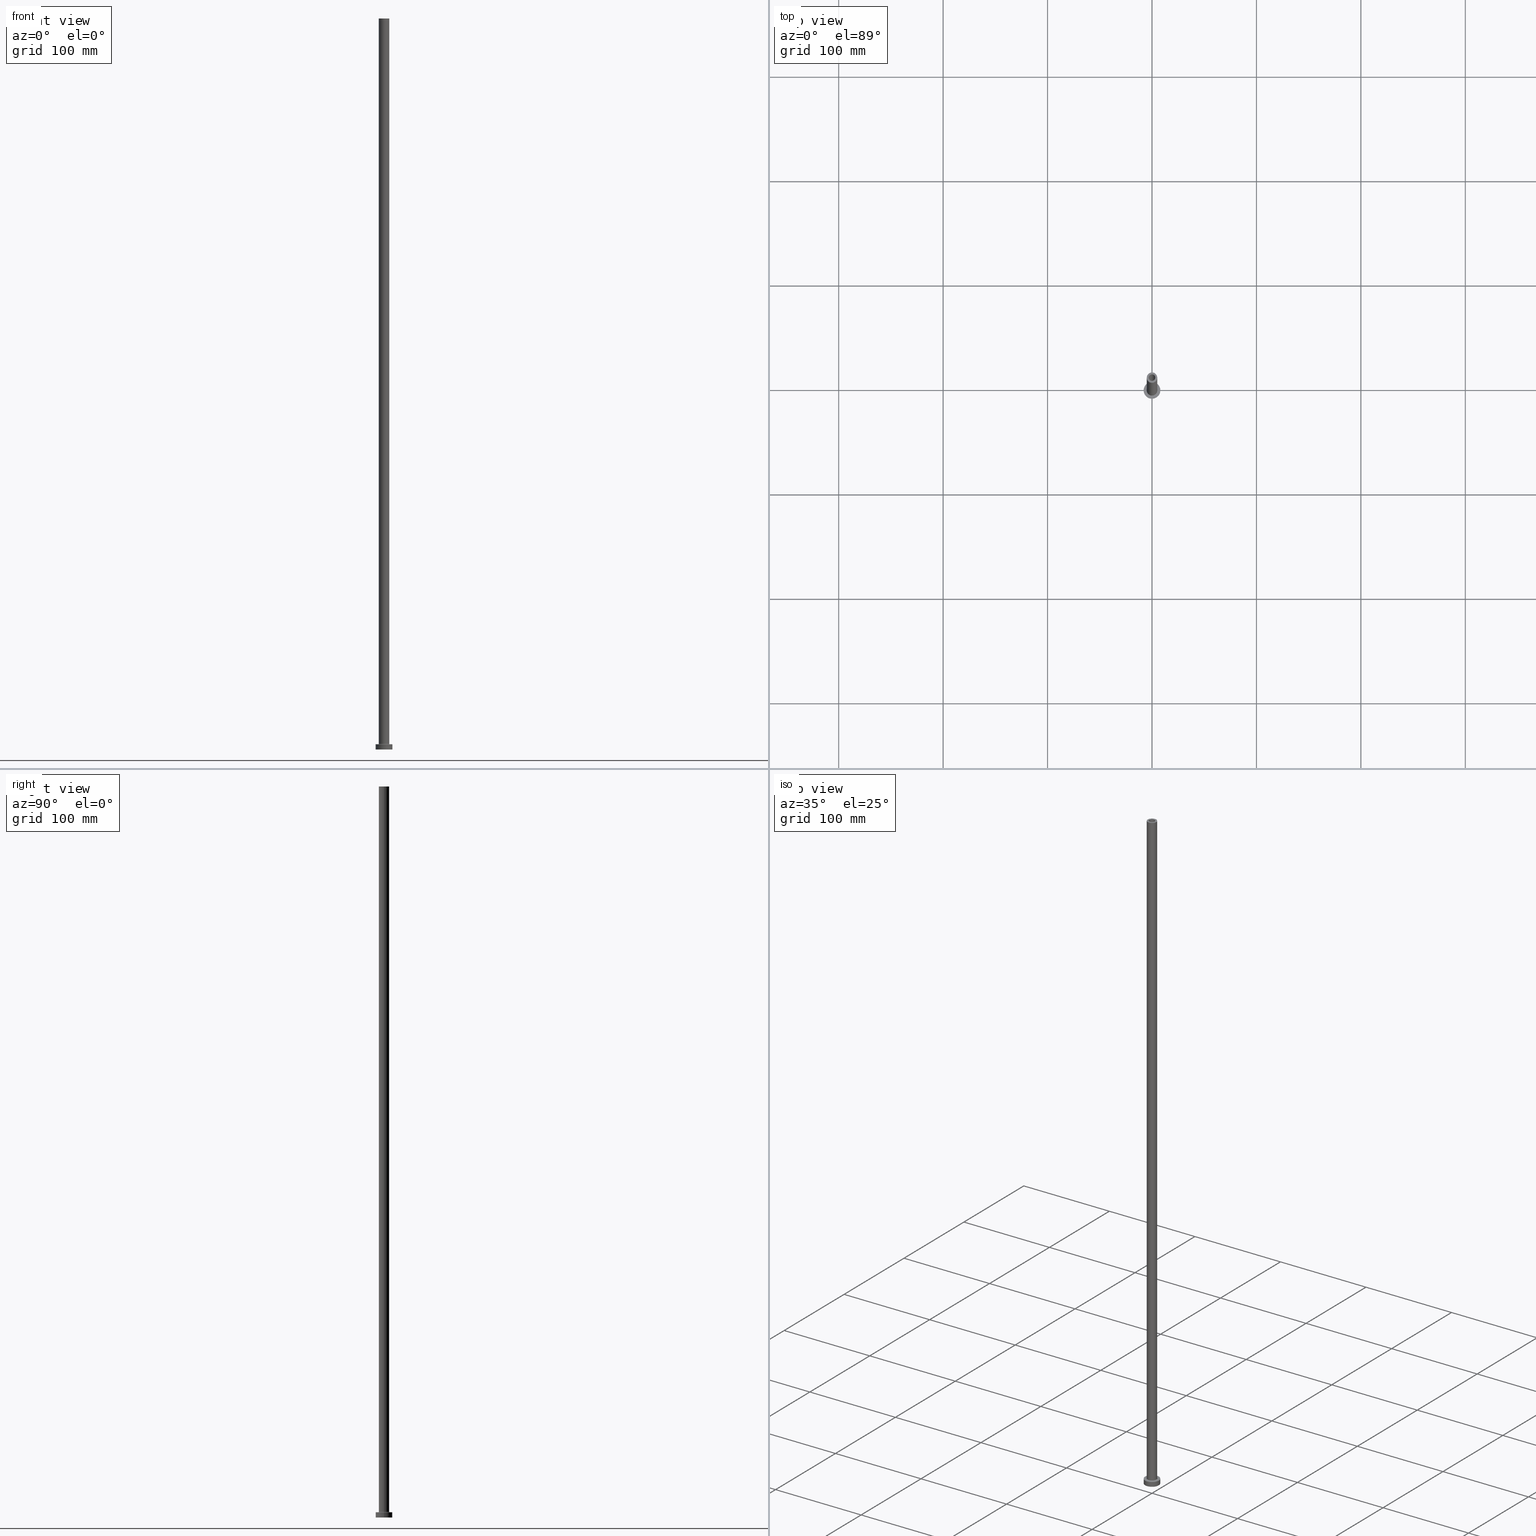
[diagram: canonical four-view strip — front | top / right | iso, engineering-drawing reading convention]
A machine part, canonical four-view strip (front | top / right | iso — engineering-drawing reading convention). The complete STEP part file that produces these views, byte-faithful:
ISO-10303-21;
HEADER;
FILE_DESCRIPTION (( 'STEP AP203' ),
    '1' );
FILE_NAME ('3b74.STEP',
    '2023-02-13T14:29:16',
    ( '' ),
    ( '' ),
    'SwSTEP 2.0',
    'SolidWorks 2019',
    '' );
FILE_SCHEMA (( 'CONFIG_CONTROL_DESIGN' ));
ENDSEC;

DATA;
#1 = CIRCLE ( 'NONE', #217, 5.000000000000000000 ) ;
#2 = AXIS2_PLACEMENT_3D ( 'NONE', #292, #110, #241 ) ;
#3 = PERSON_AND_ORGANIZATION ( #51, #314 ) ;
#4 = ORIENTED_EDGE ( 'NONE', *, *, #133, .F. ) ;
#5 = CARTESIAN_POINT ( 'NONE',  ( 0.000000000000000000, 0.000000000000000000, 700.0000000000000000 ) ) ;
#6 = DIRECTION ( 'NONE',  ( 1.000000000000000000, 0.000000000000000000, -0.000000000000000000 ) ) ;
#7 = CARTESIAN_POINT ( 'NONE',  ( 3.250000000000000444, 3.980102097228898231E-16, 654.9999999999998863 ) ) ;
#8 = DIRECTION ( 'NONE',  ( 1.000000000000000000, 0.000000000000000000, 0.000000000000000000 ) ) ;
#9 = ORIENTED_EDGE ( 'NONE', *, *, #353, .T. ) ;
#10 = EDGE_CURVE ( 'NONE', #148, #412, #381, .T. ) ;
#11 = ORIENTED_EDGE ( 'NONE', *, *, #402, .F. ) ;
#12 = CYLINDRICAL_SURFACE ( 'NONE', #70, 5.000000000000000000 ) ;
#13 = CIRCLE ( 'NONE', #398, 3.250000000000000444 ) ;
#14 = CIRCLE ( 'NONE', #289, 3.250000000000000444 ) ;
#15 = AXIS2_PLACEMENT_3D ( 'NONE', #437, #403, #61 ) ;
#16 = ORIENTED_EDGE ( 'NONE', *, *, #329, .T. ) ;
#17 = DATE_AND_TIME ( #449, #36 ) ;
#18 = APPROVAL_DATE_TIME ( #452, #160 ) ;
#19 = VERTEX_POINT ( 'NONE', #253 ) ;
#20 = DIRECTION ( 'NONE',  ( -0.000000000000000000, -0.000000000000000000, -1.000000000000000000 ) ) ;
#21 = DIRECTION ( 'NONE',  ( -1.000000000000000000, 1.224646799147351482E-16, 0.000000000000000000 ) ) ;
#22 = CC_DESIGN_APPROVAL ( #160, ( #411 ) ) ;
#23 = ORIENTED_EDGE ( 'NONE', *, *, #311, .F. ) ;
#24 = TOROIDAL_SURFACE ( 'NONE', #281, 5.500000000000000000, 0.5000000000000000000 ) ;
#25 = ADVANCED_FACE ( 'NONE', ( #97 ), #48, .F. ) ;
#26 = DIRECTION ( 'NONE',  ( -0.000000000000000000, -0.000000000000000000, -1.000000000000000000 ) ) ;
#27 = CC_DESIGN_PERSON_AND_ORGANIZATION_ASSIGNMENT ( #234, #303, ( #448 ) ) ;
#28 = APPROVAL_STATUS ( 'not_yet_approved' ) ;
#29 = AXIS2_PLACEMENT_3D ( 'NONE', #413, #20, #131 ) ;
#30 = EDGE_LOOP ( 'NONE', ( #173, #232, #312, #23 ) ) ;
#31 = AXIS2_PLACEMENT_3D ( 'NONE', #39, #149, #290 ) ;
#32 = DIRECTION ( 'NONE',  ( 0.000000000000000000, 0.000000000000000000, 1.000000000000000000 ) ) ;
#33 = EDGE_LOOP ( 'NONE', ( #130, #239, #92, #298 ) ) ;
#34 = DIRECTION ( 'NONE',  ( 1.000000000000000000, 0.000000000000000000, -0.000000000000000000 ) ) ;
#35 = COORDINATED_UNIVERSAL_TIME_OFFSET ( 1, 0, .AHEAD. ) ;
#36 = LOCAL_TIME ( 15, 29, 16.00000000000000000, #187 ) ;
#37 = DIRECTION ( 'NONE',  ( -0.000000000000000000, -0.000000000000000000, -1.000000000000000000 ) ) ;
#38 = DIRECTION ( 'NONE',  ( 0.000000000000000000, 0.000000000000000000, 1.000000000000000000 ) ) ;
#39 = CARTESIAN_POINT ( 'NONE',  ( 0.000000000000000000, 0.000000000000000000, 654.9999999999998863 ) ) ;
#40 = DIRECTION ( 'NONE',  ( 1.000000000000000000, 0.000000000000000000, -0.000000000000000000 ) ) ;
#41 = ORIENTED_EDGE ( 'NONE', *, *, #393, .T. ) ;
#42 = ORIENTED_EDGE ( 'NONE', *, *, #332, .T. ) ;
#43 = CIRCLE ( 'NONE', #368, 0.5000000000000004441 ) ;
#44 = AXIS2_PLACEMENT_3D ( 'NONE', #141, #306, #384 ) ;
#45 = DIRECTION ( 'NONE',  ( -1.000000000000000000, 0.000000000000000000, 0.000000000000000000 ) ) ;
#46 = VERTEX_POINT ( 'NONE', #352 ) ;
#47 = ADVANCED_FACE ( 'NONE', ( #318, #116 ), #325, .T. ) ;
#48 = CYLINDRICAL_SURFACE ( 'NONE', #142, 3.100000000000000089 ) ;
#49 = EDGE_LOOP ( 'NONE', ( #16, #103 ) ) ;
#50 = PRODUCT_RELATED_PRODUCT_CATEGORY ( 'detail', '', ( #448 ) ) ;
#51 = PERSON ( 'NEUR�EN�', 'NEUR�EN�', 'NEUR�EN�', ('NEUR�EN�'), ('NEUR�EN�'), ('NEUR�EN�') ) ;
#52 = CC_DESIGN_APPROVAL ( #244, ( #435 ) ) ;
#53 = EDGE_LOOP ( 'NONE', ( #255, #77, #41, #11 ) ) ;
#54 = AXIS2_PLACEMENT_3D ( 'NONE', #382, #26, #276 ) ;
#55 = EDGE_CURVE ( 'NONE', #219, #379, #231, .T. ) ;
#56 = CIRCLE ( 'NONE', #143, 3.100000000000000089 ) ;
#57 = DIRECTION ( 'NONE',  ( 0.000000000000000000, 0.000000000000000000, 1.000000000000000000 ) ) ;
#58 = DIRECTION ( 'NONE',  ( 1.224646799147353207E-16, 1.000000000000000000, -0.000000000000000000 ) ) ;
#59 = ORIENTED_EDGE ( 'NONE', *, *, #425, .F. ) ;
#60 = DIRECTION ( 'NONE',  ( -1.000000000000000000, 0.000000000000000000, 0.000000000000000000 ) ) ;
#61 = DIRECTION ( 'NONE',  ( 1.000000000000000000, 0.000000000000000000, 0.000000000000000000 ) ) ;
#62 = ADVANCED_FACE ( 'NONE', ( #74 ), #24, .F. ) ;
#63 = CIRCLE ( 'NONE', #208, 5.000000000000000000 ) ;
#64 = AXIS2_PLACEMENT_3D ( 'NONE', #336, #58, #21 ) ;
#65 = CIRCLE ( 'NONE', #316, 5.000000000000000000 ) ;
#66 = PERSON_AND_ORGANIZATION ( #51, #314 ) ;
#67 = CARTESIAN_POINT ( 'NONE',  ( -8.000000000000000000, 0.000000000000000000, 5.000000000000000000 ) ) ;
#68 = ORIENTED_EDGE ( 'NONE', *, *, #155, .F. ) ;
#69 = EDGE_CURVE ( 'NONE', #445, #148, #190, .T. ) ;
#70 = AXIS2_PLACEMENT_3D ( 'NONE', #414, #122, #60 ) ;
#71 = APPROVAL_ROLE ( '' ) ;
#72 = ORIENTED_EDGE ( 'NONE', *, *, #55, .F. ) ;
#73 = DIRECTION ( 'NONE',  ( -0.000000000000000000, -0.000000000000000000, -1.000000000000000000 ) ) ;
#74 = FACE_OUTER_BOUND ( 'NONE', #30, .T. ) ;
#75 = DATE_TIME_ROLE ( 'classification_date' ) ;
#76 = DIRECTION ( 'NONE',  ( 0.000000000000000000, 0.000000000000000000, 1.000000000000000000 ) ) ;
#77 = ORIENTED_EDGE ( 'NONE', *, *, #181, .T. ) ;
#78 = LOCAL_TIME ( 15, 29, 16.00000000000000000, #233 ) ;
#79 = CARTESIAN_POINT ( 'NONE',  ( 0.000000000000000000, 0.000000000000000000, 0.000000000000000000 ) ) ;
#80 = EDGE_LOOP ( 'NONE', ( #185, #134, #294, #264 ) ) ;
#81 = EDGE_LOOP ( 'NONE', ( #404, #204 ) ) ;
#82 = AXIS2_PLACEMENT_3D ( 'NONE', #391, #191, #372 ) ;
#83 = CARTESIAN_POINT ( 'NONE',  ( -5.000000000000000000, 0.000000000000000000, 700.0000000000000000 ) ) ;
#84 = VECTOR ( 'NONE', #117, 1000.000000000000000 ) ;
#85 = AXIS2_PLACEMENT_3D ( 'NONE', #79, #215, #34 ) ;
#86 = CC_DESIGN_DATE_AND_TIME_ASSIGNMENT ( #396, #75, ( #435 ) ) ;
#87 = ORIENTED_EDGE ( 'NONE', *, *, #393, .F. ) ;
#88 = DIRECTION ( 'NONE',  ( 1.000000000000000000, 0.000000000000000000, -0.000000000000000000 ) ) ;
#89 = EDGE_CURVE ( 'NONE', #379, #219, #296, .T. ) ;
#90 = CIRCLE ( 'NONE', #44, 8.000000000000000000 ) ;
#91 = VECTOR ( 'NONE', #235, 1000.000000000000000 ) ;
#92 = ORIENTED_EDGE ( 'NONE', *, *, #311, .T. ) ;
#93 = VECTOR ( 'NONE', #261, 1000.000000000000000 ) ;
#94 = DATE_AND_TIME ( #383, #78 ) ;
#95 = PLANE ( 'NONE',  #210 ) ;
#96 = FACE_BOUND ( 'NONE', #49, .T. ) ;
#97 = FACE_OUTER_BOUND ( 'NONE', #324, .T. ) ;
#98 = EDGE_LOOP ( 'NONE', ( #59, #374, #326, #354 ) ) ;
#99 = EDGE_CURVE ( 'NONE', #170, #153, #407, .T. ) ;
#100 = PRODUCT_DEFINITION_SHAPE ( 'NONE', 'NONE',  #411 ) ;
#101 = CARTESIAN_POINT ( 'NONE',  ( 5.000000000000000000, 6.123233995736766282E-16, 700.0000000000000000 ) ) ;
#102 = CC_DESIGN_APPROVAL ( #371, ( #174 ) ) ;
#103 = ORIENTED_EDGE ( 'NONE', *, *, #195, .T. ) ;
#104 = DIRECTION ( 'NONE',  ( 1.000000000000000000, 0.000000000000000000, 0.000000000000000000 ) ) ;
#105 = VERTEX_POINT ( 'NONE', #119 ) ;
#106 = ADVANCED_FACE ( 'NONE', ( #401 ), #256, .F. ) ;
#107 = ORIENTED_EDGE ( 'NONE', *, *, #260, .F. ) ;
#108 = DIRECTION ( 'NONE',  ( 0.000000000000000000, 0.000000000000000000, -1.000000000000000000 ) ) ;
#109 = PERSON_AND_ORGANIZATION_ROLE ( 'classification_officer' ) ;
#110 = DIRECTION ( 'NONE',  ( 0.000000000000000000, 0.000000000000000000, 1.000000000000000000 ) ) ;
#111 = CARTESIAN_POINT ( 'NONE',  ( -3.100000000000000089, 0.000000000000000000, 654.9999999999998863 ) ) ;
#112 = PERSON_AND_ORGANIZATION_ROLE ( 'creator' ) ;
#113 = EDGE_CURVE ( 'NONE', #153, #19, #310, .T. ) ;
#114 = DIRECTION ( 'NONE',  ( 1.000000000000000000, 0.000000000000000000, 0.000000000000000000 ) ) ;
#115 = FACE_OUTER_BOUND ( 'NONE', #33, .T. ) ;
#116 = FACE_OUTER_BOUND ( 'NONE', #81, .T. ) ;
#117 = DIRECTION ( 'NONE',  ( -0.000000000000000000, -0.000000000000000000, -1.000000000000000000 ) ) ;
#118 = CYLINDRICAL_SURFACE ( 'NONE', #429, 3.250000000000000444 ) ;
#119 = CARTESIAN_POINT ( 'NONE',  ( 5.500000000000000000, 0.000000000000000000, 4.999999999999975131 ) ) ;
#120 = CARTESIAN_POINT ( 'NONE',  ( 0.000000000000000000, 0.000000000000000000, 5.000000000000000000 ) ) ;
#121 = CIRCLE ( 'NONE', #302, 3.100000000000000089 ) ;
#122 = DIRECTION ( 'NONE',  ( -0.000000000000000000, -0.000000000000000000, -1.000000000000000000 ) ) ;
#123 = ORIENTED_EDGE ( 'NONE', *, *, #430, .F. ) ;
#124 = ADVANCED_FACE ( 'NONE', ( #161 ), #12, .T. ) ;
#125 = ORIENTED_EDGE ( 'NONE', *, *, #436, .F. ) ;
#126 = CYLINDRICAL_SURFACE ( 'NONE', #29, 5.000000000000000000 ) ;
#127 = CARTESIAN_POINT ( 'NONE',  ( 0.000000000000000000, 0.000000000000000000, 5.000000000000000000 ) ) ;
#128 = AXIS2_PLACEMENT_3D ( 'NONE', #228, #331, #446 ) ;
#129 = AXIS2_PLACEMENT_3D ( 'NONE', #251, #369, #45 ) ;
#130 = ORIENTED_EDGE ( 'NONE', *, *, #113, .F. ) ;
#131 = DIRECTION ( 'NONE',  ( -1.000000000000000000, 0.000000000000000000, 0.000000000000000000 ) ) ;
#132 = FACE_OUTER_BOUND ( 'NONE', #53, .T. ) ;
#133 = EDGE_CURVE ( 'NONE', #445, #458, #327, .T. ) ;
#134 = ORIENTED_EDGE ( 'NONE', *, *, #69, .T. ) ;
#135 = EDGE_CURVE ( 'NONE', #265, #138, #175, .T. ) ;
#136 = LINE ( 'NONE', #242, #286 ) ;
#137 = PERSON_AND_ORGANIZATION ( #51, #314 ) ;
#138 = VERTEX_POINT ( 'NONE', #67 ) ;
#139 = SECURITY_CLASSIFICATION_LEVEL ( 'unclassified' ) ;
#140 = DIRECTION ( 'NONE',  ( -0.000000000000000000, -0.000000000000000000, -1.000000000000000000 ) ) ;
#141 = CARTESIAN_POINT ( 'NONE',  ( 0.000000000000000000, 0.000000000000000000, 0.000000000000000000 ) ) ;
#142 = AXIS2_PLACEMENT_3D ( 'NONE', #221, #179, #397 ) ;
#143 = AXIS2_PLACEMENT_3D ( 'NONE', #5, #76, #320 ) ;
#144 = PLANE ( 'NONE',  #345 ) ;
#145 = CARTESIAN_POINT ( 'NONE',  ( 8.000000000000000000, 9.797174393178825657E-16, 5.000000000000000000 ) ) ;
#146 = VERTEX_POINT ( 'NONE', #343 ) ;
#147 = DIRECTION ( 'NONE',  ( 1.000000000000000000, 0.000000000000000000, 0.000000000000000000 ) ) ;
#148 = VERTEX_POINT ( 'NONE', #375 ) ;
#149 = DIRECTION ( 'NONE',  ( 0.000000000000000000, 0.000000000000000000, 1.000000000000000000 ) ) ;
#150 = AXIS2_PLACEMENT_3D ( 'NONE', #218, #207, #357 ) ;
#151 = ADVANCED_FACE ( 'NONE', ( #96, #410 ), #95, .T. ) ;
#152 = EDGE_LOOP ( 'NONE', ( #107, #125 ) ) ;
#153 = VERTEX_POINT ( 'NONE', #440 ) ;
#154 = ORIENTED_EDGE ( 'NONE', *, *, #135, .T. ) ;
#155 = EDGE_CURVE ( 'NONE', #412, #148, #14, .T. ) ;
#156 = APPROVAL_PERSON_ORGANIZATION ( #447, #160, #192 ) ;
#157 = ORIENTED_EDGE ( 'NONE', *, *, #10, .F. ) ;
#158 = MECHANICAL_CONTEXT ( 'NONE', #333, 'mechanical' ) ;
#159 = FACE_OUTER_BOUND ( 'NONE', #98, .T. ) ;
#160 = APPROVAL ( #162, 'NEUR�EN�' ) ;
#161 = FACE_OUTER_BOUND ( 'NONE', #432, .T. ) ;
#162 = APPROVAL_STATUS ( 'not_yet_approved' ) ;
#163 = CARTESIAN_POINT ( 'NONE',  ( 3.100000000000000089, 3.796405077356794918E-16, 700.0000000000000000 ) ) ;
#164 = LINE ( 'NONE', #101, #91 ) ;
#165 = CC_DESIGN_PERSON_AND_ORGANIZATION_ASSIGNMENT ( #360, #109, ( #435 ) ) ;
#166 = ORIENTED_EDGE ( 'NONE', *, *, #315, .T. ) ;
#167 = DIRECTION ( 'NONE',  ( 1.000000000000000000, 0.000000000000000000, 0.000000000000000000 ) ) ;
#168 = APPROVAL_ROLE ( '' ) ;
#169 = EDGE_CURVE ( 'NONE', #182, #219, #295, .T. ) ;
#170 = VERTEX_POINT ( 'NONE', #409 ) ;
#171 = AXIS2_PLACEMENT_3D ( 'NONE', #127, #269, #417 ) ;
#172 = CARTESIAN_POINT ( 'NONE',  ( 0.000000000000000000, 0.000000000000000000, 5.000000000000000000 ) ) ;
#173 = ORIENTED_EDGE ( 'NONE', *, *, #439, .F. ) ;
#174 = PRODUCT_DEFINITION_FORMATION_WITH_SPECIFIED_SOURCE ( 'LIBOVOLN�', '', #448, .NOT_KNOWN. ) ;
#175 = CIRCLE ( 'NONE', #171, 8.000000000000000000 ) ;
#176 = ORIENTED_EDGE ( 'NONE', *, *, #169, .T. ) ;
#177 = DIRECTION ( 'NONE',  ( 1.000000000000000000, 0.000000000000000000, 0.000000000000000000 ) ) ;
#178 = MANIFOLD_SOLID_BREP ( 'Odebrat vysunut�m4', #376 ) ;
#179 = DIRECTION ( 'NONE',  ( 0.000000000000000000, 0.000000000000000000, -1.000000000000000000 ) ) ;
#180 = EDGE_LOOP ( 'NONE', ( #443, #321, #166, #216 ) ) ;
#181 = EDGE_CURVE ( 'NONE', #265, #236, #339, .T. ) ;
#182 = VERTEX_POINT ( 'NONE', #362 ) ;
#183 = ADVANCED_FACE ( 'NONE', ( #115 ), #389, .F. ) ;
#184 = AXIS2_PLACEMENT_3D ( 'NONE', #347, #454, #8 ) ;
#185 = ORIENTED_EDGE ( 'NONE', *, *, #344, .T. ) ;
#186 = CIRCLE ( 'NONE', #373, 5.500000000000000000 ) ;
#187 = COORDINATED_UNIVERSAL_TIME_OFFSET ( 1, 0, .AHEAD. ) ;
#188 = CARTESIAN_POINT ( 'NONE',  ( -3.100000000000000089, 0.000000000000000000, 700.0000000000000000 ) ) ;
#189 = DIRECTION ( 'NONE',  ( -0.000000000000000000, -0.000000000000000000, -1.000000000000000000 ) ) ;
#190 = LINE ( 'NONE', #258, #359 ) ;
#191 = DIRECTION ( 'NONE',  ( 0.000000000000000000, 0.000000000000000000, 1.000000000000000000 ) ) ;
#192 = APPROVAL_ROLE ( '' ) ;
#193 = DATE_TIME_ROLE ( 'creation_date' ) ;
#194 = CALENDAR_DATE ( 2023, 13, 2 ) ;
#195 = EDGE_CURVE ( 'NONE', #19, #105, #186, .T. ) ;
#196 = PERSON_AND_ORGANIZATION_ROLE ( 'design_supplier' ) ;
#197 = COORDINATED_UNIVERSAL_TIME_OFFSET ( 1, 0, .AHEAD. ) ;
#198 = AXIS2_PLACEMENT_3D ( 'NONE', #120, #237, #456 ) ;
#199 = CALENDAR_DATE ( 2023, 13, 2 ) ;
#200 = EDGE_LOOP ( 'NONE', ( #418, #433, #349, #42 ) ) ;
#201 = PERSON_AND_ORGANIZATION_ROLE ( 'creator' ) ;
#202 = ADVANCED_FACE ( 'NONE', ( #438 ), #118, .F. ) ;
#203 = CARTESIAN_POINT ( 'NONE',  ( -3.250000000000000444, 0.000000000000000000, 654.9999999999998863 ) ) ;
#204 = ORIENTED_EDGE ( 'NONE', *, *, #272, .T. ) ;
#205 = FACE_OUTER_BOUND ( 'NONE', #301, .T. ) ;
#206 =( LENGTH_UNIT ( ) NAMED_UNIT ( * ) SI_UNIT ( .MILLI., .METRE. ) );
#207 = DIRECTION ( 'NONE',  ( 0.000000000000000000, 0.000000000000000000, -1.000000000000000000 ) ) ;
#208 = AXIS2_PLACEMENT_3D ( 'NONE', #319, #330, #114 ) ;
#209 = PERSON_AND_ORGANIZATION ( #51, #314 ) ;
#210 = AXIS2_PLACEMENT_3D ( 'NONE', #377, #57, #88 ) ;
#211 = CARTESIAN_POINT ( 'NONE',  ( 0.000000000000000000, 0.000000000000000000, 5.499999999999949374 ) ) ;
#212 = ORIENTED_EDGE ( 'NONE', *, *, #425, .T. ) ;
#213 = ADVANCED_BREP_SHAPE_REPRESENTATION ( '3b74', ( #178, #184 ), #450 ) ;
#214 = DIRECTION ( 'NONE',  ( -0.000000000000000000, -0.000000000000000000, -1.000000000000000000 ) ) ;
#215 = DIRECTION ( 'NONE',  ( 0.000000000000000000, 0.000000000000000000, 1.000000000000000000 ) ) ;
#216 = ORIENTED_EDGE ( 'NONE', *, *, #155, .T. ) ;
#217 = AXIS2_PLACEMENT_3D ( 'NONE', #293, #245, #390 ) ;
#218 = CARTESIAN_POINT ( 'NONE',  ( 0.000000000000000000, 0.000000000000000000, 664.1923881554251921 ) ) ;
#219 = VERTEX_POINT ( 'NONE', #111 ) ;
#220 = DIRECTION ( 'NONE',  ( 0.000000000000000000, 0.000000000000000000, 1.000000000000000000 ) ) ;
#221 = CARTESIAN_POINT ( 'NONE',  ( 0.000000000000000000, 0.000000000000000000, 700.0000000000000000 ) ) ;
#222 = COORDINATED_UNIVERSAL_TIME_OFFSET ( 1, 0, .AHEAD. ) ;
#223 = CIRCLE ( 'NONE', #428, 5.500000000000000000 ) ;
#224 = EDGE_LOOP ( 'NONE', ( #408, #87 ) ) ;
#225 = APPROVAL_PERSON_ORGANIZATION ( #137, #244, #71 ) ;
#226 = DIRECTION ( 'NONE',  ( 0.000000000000000000, 0.000000000000000000, 1.000000000000000000 ) ) ;
#227 = ADVANCED_FACE ( 'NONE', ( #431, #243 ), #313, .F. ) ;
#228 = CARTESIAN_POINT ( 'NONE',  ( 0.000000000000000000, 0.000000000000000000, 0.000000000000000000 ) ) ;
#229 = CARTESIAN_POINT ( 'NONE',  ( 0.000000000000000000, 0.000000000000000000, 654.9999999999998863 ) ) ;
#230 = ADVANCED_FACE ( 'NONE', ( #254, #205 ), #144, .F. ) ;
#231 = CIRCLE ( 'NONE', #2, 3.100000000000000089 ) ;
#232 = ORIENTED_EDGE ( 'NONE', *, *, #113, .T. ) ;
#233 = COORDINATED_UNIVERSAL_TIME_OFFSET ( 1, 0, .AHEAD. ) ;
#234 = PERSON_AND_ORGANIZATION ( #51, #314 ) ;
#235 = DIRECTION ( 'NONE',  ( -0.000000000000000000, -0.000000000000000000, -1.000000000000000000 ) ) ;
#236 = VERTEX_POINT ( 'NONE', #285 ) ;
#237 = DIRECTION ( 'NONE',  ( -0.000000000000000000, -0.000000000000000000, -1.000000000000000000 ) ) ;
#238 = APPROVAL_STATUS ( 'not_yet_approved' ) ;
#239 = ORIENTED_EDGE ( 'NONE', *, *, #266, .F. ) ;
#240 = ADVANCED_FACE ( 'NONE', ( #249 ), #366, .T. ) ;
#241 = DIRECTION ( 'NONE',  ( 1.000000000000000000, 0.000000000000000000, 0.000000000000000000 ) ) ;
#242 = CARTESIAN_POINT ( 'NONE',  ( -3.250000000000000444, 0.000000000000000000, 664.1923881554251921 ) ) ;
#243 = FACE_OUTER_BOUND ( 'NONE', #224, .T. ) ;
#244 = APPROVAL ( #238, 'NEUR�EN�' ) ;
#245 = DIRECTION ( 'NONE',  ( 0.000000000000000000, 0.000000000000000000, 1.000000000000000000 ) ) ;
#246 = DIRECTION ( 'NONE',  ( -1.000000000000000000, 0.000000000000000000, 0.000000000000000000 ) ) ;
#247 = DIRECTION ( 'NONE',  ( 0.000000000000000000, 0.000000000000000000, -1.000000000000000000 ) ) ;
#248 = VECTOR ( 'NONE', #140, 1000.000000000000000 ) ;
#249 = FACE_OUTER_BOUND ( 'NONE', #200, .T. ) ;
#250 = CARTESIAN_POINT ( 'NONE',  ( 0.000000000000000000, 0.000000000000000000, 5.000000000000000000 ) ) ;
#251 = CARTESIAN_POINT ( 'NONE',  ( 0.000000000000000000, 0.000000000000000000, 700.0000000000000000 ) ) ;
#252 = CC_DESIGN_PERSON_AND_ORGANIZATION_ASSIGNMENT ( #3, #196, ( #174 ) ) ;
#253 = CARTESIAN_POINT ( 'NONE',  ( -5.500000000000000000, 6.735557395310442023E-16, 4.999999999999975131 ) ) ;
#254 = FACE_BOUND ( 'NONE', #386, .T. ) ;
#255 = ORIENTED_EDGE ( 'NONE', *, *, #135, .F. ) ;
#256 = CYLINDRICAL_SURFACE ( 'NONE', #150, 3.250000000000000444 ) ;
#257 = DIRECTION ( 'NONE',  ( 1.000000000000000000, 0.000000000000000000, 0.000000000000000000 ) ) ;
#258 = CARTESIAN_POINT ( 'NONE',  ( 3.250000000000000444, 3.980102097228898231E-16, 664.1923881554251921 ) ) ;
#259 = CIRCLE ( 'NONE', #82, 8.000000000000000000 ) ;
#260 = EDGE_CURVE ( 'NONE', #182, #307, #56, .T. ) ;
#261 = DIRECTION ( 'NONE',  ( 0.000000000000000000, 0.000000000000000000, -1.000000000000000000 ) ) ;
#262 = AXIS2_PLACEMENT_3D ( 'NONE', #399, #38, #177 ) ;
#263 = CARTESIAN_POINT ( 'NONE',  ( -8.000000000000000000, 0.000000000000000000, 5.000000000000000000 ) ) ;
#264 = ORIENTED_EDGE ( 'NONE', *, *, #315, .F. ) ;
#265 = VERTEX_POINT ( 'NONE', #145 ) ;
#266 = EDGE_CURVE ( 'NONE', #146, #153, #65, .T. ) ;
#267 = ORIENTED_EDGE ( 'NONE', *, *, #169, .F. ) ;
#268 = PERSON_AND_ORGANIZATION ( #51, #314 ) ;
#269 = DIRECTION ( 'NONE',  ( 0.000000000000000000, 0.000000000000000000, 1.000000000000000000 ) ) ;
#270 = AXIS2_PLACEMENT_3D ( 'NONE', #434, #328, #6 ) ;
#271 = ORIENTED_EDGE ( 'NONE', *, *, #436, .T. ) ;
#272 = EDGE_CURVE ( 'NONE', #415, #170, #422, .T. ) ;
#273 = CYLINDRICAL_SURFACE ( 'NONE', #198, 8.000000000000000000 ) ;
#274 = ORIENTED_EDGE ( 'NONE', *, *, #266, .T. ) ;
#275 = ADVANCED_FACE ( 'NONE', ( #132 ), #273, .T. ) ;
#276 = DIRECTION ( 'NONE',  ( 1.000000000000000000, 0.000000000000000000, 0.000000000000000000 ) ) ;
#277 = CIRCLE ( 'NONE', #128, 8.000000000000000000 ) ;
#278 = DIRECTION ( 'NONE',  ( 0.000000000000000000, 0.000000000000000000, 1.000000000000000000 ) ) ;
#279 = ORIENTED_EDGE ( 'NONE', *, *, #99, .F. ) ;
#280 = APPROVAL_DATE_TIME ( #17, #371 ) ;
#281 = AXIS2_PLACEMENT_3D ( 'NONE', #342, #226, #340 ) ;
#282 = VECTOR ( 'NONE', #73, 1000.000000000000000 ) ;
#283 = FACE_OUTER_BOUND ( 'NONE', #364, .T. ) ;
#284 = DATE_AND_TIME ( #199, #421 ) ;
#285 = CARTESIAN_POINT ( 'NONE',  ( 8.000000000000000000, 9.797174393178825657E-16, 0.000000000000000000 ) ) ;
#286 = VECTOR ( 'NONE', #395, 1000.000000000000000 ) ;
#287 = CC_DESIGN_PERSON_AND_ORGANIZATION_ASSIGNMENT ( #209, #112, ( #174 ) ) ;
#288 = DIRECTION ( 'NONE',  ( 0.000000000000000000, 0.000000000000000000, 1.000000000000000000 ) ) ;
#289 = AXIS2_PLACEMENT_3D ( 'NONE', #335, #189, #444 ) ;
#290 = DIRECTION ( 'NONE',  ( 1.000000000000000000, 0.000000000000000000, 0.000000000000000000 ) ) ;
#291 = ORIENTED_EDGE ( 'NONE', *, *, #55, .T. ) ;
#292 = CARTESIAN_POINT ( 'NONE',  ( 0.000000000000000000, 0.000000000000000000, 654.9999999999998863 ) ) ;
#293 = CARTESIAN_POINT ( 'NONE',  ( 0.000000000000000000, 0.000000000000000000, 700.0000000000000000 ) ) ;
#294 = ORIENTED_EDGE ( 'NONE', *, *, #10, .T. ) ;
#295 = LINE ( 'NONE', #188, #93 ) ;
#296 = CIRCLE ( 'NONE', #31, 3.100000000000000089 ) ;
#297 = ADVANCED_FACE ( 'NONE', ( #159 ), #126, .T. ) ;
#298 = ORIENTED_EDGE ( 'NONE', *, *, #195, .F. ) ;
#299 = CARTESIAN_POINT ( 'NONE',  ( 8.000000000000000000, 9.797174393178825657E-16, 5.000000000000000000 ) ) ;
#300 = APPLICATION_PROTOCOL_DEFINITION ( 'international standard', 'config_control_design', 1994, #333 ) ;
#301 = EDGE_LOOP ( 'NONE', ( #420, #4 ) ) ;
#302 = AXIS2_PLACEMENT_3D ( 'NONE', #348, #32, #257 ) ;
#303 = PERSON_AND_ORGANIZATION_ROLE ( 'design_owner' ) ;
#304 = EDGE_LOOP ( 'NONE', ( #9, #154 ) ) ;
#305 = LINE ( 'NONE', #263, #248 ) ;
#306 = DIRECTION ( 'NONE',  ( 0.000000000000000000, 0.000000000000000000, 1.000000000000000000 ) ) ;
#307 = VERTEX_POINT ( 'NONE', #163 ) ;
#308 = CC_DESIGN_SECURITY_CLASSIFICATION ( #435, ( #174 ) ) ;
#309 = LINE ( 'NONE', #453, #358 ) ;
#310 = CIRCLE ( 'NONE', #64, 0.5000000000000004441 ) ;
#311 = EDGE_CURVE ( 'NONE', #146, #105, #43, .T. ) ;
#312 = ORIENTED_EDGE ( 'NONE', *, *, #329, .F. ) ;
#313 = PLANE ( 'NONE',  #85 ) ;
#314 = ORGANIZATION ( 'NEUR�EN�', 'NEUR�EN�', '' ) ;
#315 = EDGE_CURVE ( 'NONE', #458, #412, #136, .T. ) ;
#316 = AXIS2_PLACEMENT_3D ( 'NONE', #211, #323, #147 ) ;
#317 =( NAMED_UNIT ( * ) PLANE_ANGLE_UNIT ( ) SI_UNIT ( $, .RADIAN. ) );
#318 = FACE_BOUND ( 'NONE', #152, .T. ) ;
#319 = CARTESIAN_POINT ( 'NONE',  ( 0.000000000000000000, 0.000000000000000000, 5.499999999999949374 ) ) ;
#320 = DIRECTION ( 'NONE',  ( 1.000000000000000000, 0.000000000000000000, 0.000000000000000000 ) ) ;
#321 = ORIENTED_EDGE ( 'NONE', *, *, #133, .T. ) ;
#322 = CYLINDRICAL_SURFACE ( 'NONE', #129, 3.100000000000000089 ) ;
#323 = DIRECTION ( 'NONE',  ( 0.000000000000000000, 0.000000000000000000, 1.000000000000000000 ) ) ;
#324 = EDGE_LOOP ( 'NONE', ( #406, #392, #72, #267 ) ) ;
#325 = PLANE ( 'NONE',  #270 ) ;
#326 = ORIENTED_EDGE ( 'NONE', *, *, #99, .T. ) ;
#327 = CIRCLE ( 'NONE', #388, 3.250000000000000444 ) ;
#328 = DIRECTION ( 'NONE',  ( 0.000000000000000000, 0.000000000000000000, 1.000000000000000000 ) ) ;
#329 = EDGE_CURVE ( 'NONE', #105, #19, #223, .T. ) ;
#330 = DIRECTION ( 'NONE',  ( 0.000000000000000000, 0.000000000000000000, 1.000000000000000000 ) ) ;
#331 = DIRECTION ( 'NONE',  ( 0.000000000000000000, 0.000000000000000000, 1.000000000000000000 ) ) ;
#332 = EDGE_CURVE ( 'NONE', #46, #236, #90, .T. ) ;
#333 = APPLICATION_CONTEXT ( 'configuration controlled 3d designs of mechanical parts and assemblies' ) ;
#334 = DESIGN_CONTEXT ( 'detailed design', #367, 'design' ) ;
#335 = CARTESIAN_POINT ( 'NONE',  ( 0.000000000000000000, 0.000000000000000000, 0.000000000000000000 ) ) ;
#336 = CARTESIAN_POINT ( 'NONE',  ( -5.500000000000000000, 6.735557395310442023E-16, 5.499999999999949374 ) ) ;
#337 = ORIENTED_EDGE ( 'NONE', *, *, #272, .F. ) ;
#338 = CC_DESIGN_DATE_AND_TIME_ASSIGNMENT ( #94, #193, ( #411 ) ) ;
#339 = LINE ( 'NONE', #299, #282 ) ;
#340 = DIRECTION ( 'NONE',  ( 1.000000000000000000, 0.000000000000000000, 0.000000000000000000 ) ) ;
#341 = DIRECTION ( 'NONE',  ( 1.000000000000000000, 0.000000000000000000, 0.000000000000000000 ) ) ;
#342 = CARTESIAN_POINT ( 'NONE',  ( 0.000000000000000000, 0.000000000000000000, 5.499999999999949374 ) ) ;
#343 = CARTESIAN_POINT ( 'NONE',  ( 5.000000000000000000, 6.123233995736766282E-16, 5.499999999999949374 ) ) ;
#344 = EDGE_CURVE ( 'NONE', #458, #445, #13, .T. ) ;
#345 = AXIS2_PLACEMENT_3D ( 'NONE', #355, #288, #40 ) ;
#346 = DIRECTION ( 'NONE',  ( 0.000000000000000000, -1.000000000000000000, 0.000000000000000000 ) ) ;
#347 = CARTESIAN_POINT ( 'NONE',  ( 0.000000000000000000, 0.000000000000000000, 0.000000000000000000 ) ) ;
#348 = CARTESIAN_POINT ( 'NONE',  ( 0.000000000000000000, 0.000000000000000000, 700.0000000000000000 ) ) ;
#349 = ORIENTED_EDGE ( 'NONE', *, *, #402, .T. ) ;
#350 = CC_DESIGN_PERSON_AND_ORGANIZATION_ASSIGNMENT ( #268, #201, ( #411 ) ) ;
#351 = DIRECTION ( 'NONE',  ( -1.000000000000000000, 0.000000000000000000, 0.000000000000000000 ) ) ;
#352 = CARTESIAN_POINT ( 'NONE',  ( -8.000000000000000000, 0.000000000000000000, 0.000000000000000000 ) ) ;
#353 = EDGE_CURVE ( 'NONE', #138, #265, #259, .T. ) ;
#354 = ORIENTED_EDGE ( 'NONE', *, *, #439, .T. ) ;
#355 = CARTESIAN_POINT ( 'NONE',  ( 0.000000000000000000, 0.000000000000000000, 654.9999999999998863 ) ) ;
#356 = APPROVAL_DATE_TIME ( #284, #244 ) ;
#357 = DIRECTION ( 'NONE',  ( -1.000000000000000000, 0.000000000000000000, 0.000000000000000000 ) ) ;
#358 = VECTOR ( 'NONE', #426, 1000.000000000000000 ) ;
#359 = VECTOR ( 'NONE', #247, 1000.000000000000000 ) ;
#360 = PERSON_AND_ORGANIZATION ( #51, #314 ) ;
#361 = AXIS2_PLACEMENT_3D ( 'NONE', #461, #37, #246 ) ;
#362 = CARTESIAN_POINT ( 'NONE',  ( -3.100000000000000089, 0.000000000000000000, 700.0000000000000000 ) ) ;
#363 =( NAMED_UNIT ( * ) SI_UNIT ( $, .STERADIAN. ) SOLID_ANGLE_UNIT ( ) );
#364 = EDGE_LOOP ( 'NONE', ( #123, #271, #176, #378 ) ) ;
#365 = DIRECTION ( 'NONE',  ( 1.000000000000000000, 0.000000000000000000, 0.000000000000000000 ) ) ;
#366 = CYLINDRICAL_SURFACE ( 'NONE', #361, 8.000000000000000000 ) ;
#367 = APPLICATION_CONTEXT ( 'configuration controlled 3d designs of mechanical parts and assemblies' ) ;
#368 = AXIS2_PLACEMENT_3D ( 'NONE', #380, #346, #455 ) ;
#369 = DIRECTION ( 'NONE',  ( 0.000000000000000000, 0.000000000000000000, -1.000000000000000000 ) ) ;
#370 = LOCAL_TIME ( 15, 29, 16.00000000000000000, #197 ) ;
#371 = APPROVAL ( #28, 'NEUR�EN�' ) ;
#372 = DIRECTION ( 'NONE',  ( 1.000000000000000000, 0.000000000000000000, 0.000000000000000000 ) ) ;
#373 = AXIS2_PLACEMENT_3D ( 'NONE', #250, #214, #365 ) ;
#374 = ORIENTED_EDGE ( 'NONE', *, *, #451, .F. ) ;
#375 = CARTESIAN_POINT ( 'NONE',  ( 3.250000000000000444, 3.980102097228898231E-16, 0.000000000000000000 ) ) ;
#376 = CLOSED_SHELL ( 'NONE', ( #25, #202, #62, #124, #275, #240, #151, #227, #297, #47, #183, #106, #230, #385 ) ) ;
#377 = CARTESIAN_POINT ( 'NONE',  ( 0.000000000000000000, 0.000000000000000000, 5.000000000000000000 ) ) ;
#378 = ORIENTED_EDGE ( 'NONE', *, *, #89, .F. ) ;
#379 = VERTEX_POINT ( 'NONE', #400 ) ;
#380 = CARTESIAN_POINT ( 'NONE',  ( 5.500000000000000000, 0.000000000000000000, 5.499999999999949374 ) ) ;
#381 = CIRCLE ( 'NONE', #54, 3.250000000000000444 ) ;
#382 = CARTESIAN_POINT ( 'NONE',  ( 0.000000000000000000, 0.000000000000000000, 0.000000000000000000 ) ) ;
#383 = CALENDAR_DATE ( 2023, 13, 2 ) ;
#384 = DIRECTION ( 'NONE',  ( 1.000000000000000000, 0.000000000000000000, 0.000000000000000000 ) ) ;
#385 = ADVANCED_FACE ( 'NONE', ( #283 ), #322, .F. ) ;
#386 = EDGE_LOOP ( 'NONE', ( #291, #442 ) ) ;
#387 = CARTESIAN_POINT ( 'NONE',  ( 5.000000000000000000, 6.123233995736766282E-16, 700.0000000000000000 ) ) ;
#388 = AXIS2_PLACEMENT_3D ( 'NONE', #229, #220, #341 ) ;
#389 = TOROIDAL_SURFACE ( 'NONE', #262, 5.500000000000000000, 0.5000000000000000000 ) ;
#390 = DIRECTION ( 'NONE',  ( 1.000000000000000000, 0.000000000000000000, 0.000000000000000000 ) ) ;
#391 = CARTESIAN_POINT ( 'NONE',  ( 0.000000000000000000, 0.000000000000000000, 5.000000000000000000 ) ) ;
#392 = ORIENTED_EDGE ( 'NONE', *, *, #430, .T. ) ;
#393 = EDGE_CURVE ( 'NONE', #236, #46, #277, .T. ) ;
#394 = CALENDAR_DATE ( 2023, 13, 2 ) ;
#395 = DIRECTION ( 'NONE',  ( 0.000000000000000000, 0.000000000000000000, -1.000000000000000000 ) ) ;
#396 = DATE_AND_TIME ( #394, #416 ) ;
#397 = DIRECTION ( 'NONE',  ( -1.000000000000000000, 0.000000000000000000, 0.000000000000000000 ) ) ;
#398 = AXIS2_PLACEMENT_3D ( 'NONE', #423, #278, #104 ) ;
#399 = CARTESIAN_POINT ( 'NONE',  ( 0.000000000000000000, 0.000000000000000000, 5.499999999999949374 ) ) ;
#400 = CARTESIAN_POINT ( 'NONE',  ( 3.100000000000000089, 3.796405077356794918E-16, 654.9999999999998863 ) ) ;
#401 = FACE_OUTER_BOUND ( 'NONE', #180, .T. ) ;
#402 = EDGE_CURVE ( 'NONE', #138, #46, #305, .T. ) ;
#403 = DIRECTION ( 'NONE',  ( 0.000000000000000000, 0.000000000000000000, 1.000000000000000000 ) ) ;
#404 = ORIENTED_EDGE ( 'NONE', *, *, #451, .T. ) ;
#405 = CARTESIAN_POINT ( 'NONE',  ( 0.000000000000000000, 0.000000000000000000, 664.1923881554251921 ) ) ;
#406 = ORIENTED_EDGE ( 'NONE', *, *, #260, .T. ) ;
#407 = LINE ( 'NONE', #83, #84 ) ;
#408 = ORIENTED_EDGE ( 'NONE', *, *, #332, .F. ) ;
#409 = CARTESIAN_POINT ( 'NONE',  ( -5.000000000000000000, 0.000000000000000000, 700.0000000000000000 ) ) ;
#410 = FACE_OUTER_BOUND ( 'NONE', #304, .T. ) ;
#411 = PRODUCT_DEFINITION ( 'NEZN�M�', '', #174, #334 ) ;
#412 = VERTEX_POINT ( 'NONE', #457 ) ;
#413 = CARTESIAN_POINT ( 'NONE',  ( 0.000000000000000000, 0.000000000000000000, 700.0000000000000000 ) ) ;
#414 = CARTESIAN_POINT ( 'NONE',  ( 0.000000000000000000, 0.000000000000000000, 700.0000000000000000 ) ) ;
#415 = VERTEX_POINT ( 'NONE', #387 ) ;
#416 = LOCAL_TIME ( 15, 29, 16.00000000000000000, #222 ) ;
#417 = DIRECTION ( 'NONE',  ( 1.000000000000000000, 0.000000000000000000, 0.000000000000000000 ) ) ;
#418 = ORIENTED_EDGE ( 'NONE', *, *, #181, .F. ) ;
#419 = UNCERTAINTY_MEASURE_WITH_UNIT (LENGTH_MEASURE( 1.000000000000000082E-05 ), #206, 'distance_accuracy_value', 'NONE');
#420 = ORIENTED_EDGE ( 'NONE', *, *, #344, .F. ) ;
#421 = LOCAL_TIME ( 15, 29, 16.00000000000000000, #35 ) ;
#422 = CIRCLE ( 'NONE', #15, 5.000000000000000000 ) ;
#423 = CARTESIAN_POINT ( 'NONE',  ( 0.000000000000000000, 0.000000000000000000, 654.9999999999998863 ) ) ;
#424 = APPLICATION_PROTOCOL_DEFINITION ( 'international standard', 'config_control_design', 1994, #367 ) ;
#425 = EDGE_CURVE ( 'NONE', #415, #146, #164, .T. ) ;
#426 = DIRECTION ( 'NONE',  ( 0.000000000000000000, 0.000000000000000000, -1.000000000000000000 ) ) ;
#427 = EDGE_LOOP ( 'NONE', ( #68, #157 ) ) ;
#428 = AXIS2_PLACEMENT_3D ( 'NONE', #172, #460, #167 ) ;
#429 = AXIS2_PLACEMENT_3D ( 'NONE', #405, #108, #351 ) ;
#430 = EDGE_CURVE ( 'NONE', #307, #379, #309, .T. ) ;
#431 = FACE_BOUND ( 'NONE', #427, .T. ) ;
#432 = EDGE_LOOP ( 'NONE', ( #337, #212, #274, #279 ) ) ;
#433 = ORIENTED_EDGE ( 'NONE', *, *, #353, .F. ) ;
#434 = CARTESIAN_POINT ( 'NONE',  ( 0.000000000000000000, 0.000000000000000000, 700.0000000000000000 ) ) ;
#435 = SECURITY_CLASSIFICATION ( '', '', #139 ) ;
#436 = EDGE_CURVE ( 'NONE', #307, #182, #121, .T. ) ;
#437 = CARTESIAN_POINT ( 'NONE',  ( 0.000000000000000000, 0.000000000000000000, 700.0000000000000000 ) ) ;
#438 = FACE_OUTER_BOUND ( 'NONE', #80, .T. ) ;
#439 = EDGE_CURVE ( 'NONE', #153, #146, #63, .T. ) ;
#440 = CARTESIAN_POINT ( 'NONE',  ( -5.000000000000000000, 0.000000000000000000, 5.499999999999949374 ) ) ;
#441 = APPROVAL_PERSON_ORGANIZATION ( #66, #371, #168 ) ;
#442 = ORIENTED_EDGE ( 'NONE', *, *, #89, .T. ) ;
#443 = ORIENTED_EDGE ( 'NONE', *, *, #69, .F. ) ;
#444 = DIRECTION ( 'NONE',  ( 1.000000000000000000, 0.000000000000000000, 0.000000000000000000 ) ) ;
#445 = VERTEX_POINT ( 'NONE', #7 ) ;
#446 = DIRECTION ( 'NONE',  ( 1.000000000000000000, 0.000000000000000000, 0.000000000000000000 ) ) ;
#447 = PERSON_AND_ORGANIZATION ( #51, #314 ) ;
#448 = PRODUCT ( '3b74', '3b74', '', ( #158 ) ) ;
#449 = CALENDAR_DATE ( 2023, 13, 2 ) ;
#450 =( GEOMETRIC_REPRESENTATION_CONTEXT ( 3 ) GLOBAL_UNCERTAINTY_ASSIGNED_CONTEXT ( ( #419 ) ) GLOBAL_UNIT_ASSIGNED_CONTEXT ( ( #206, #317, #363 ) ) REPRESENTATION_CONTEXT ( 'NONE', 'WORKASPACE' ) );
#451 = EDGE_CURVE ( 'NONE', #170, #415, #1, .T. ) ;
#452 = DATE_AND_TIME ( #194, #370 ) ;
#453 = CARTESIAN_POINT ( 'NONE',  ( 3.100000000000000089, 3.796405077356794918E-16, 700.0000000000000000 ) ) ;
#454 = DIRECTION ( 'NONE',  ( 0.000000000000000000, 0.000000000000000000, 1.000000000000000000 ) ) ;
#455 = DIRECTION ( 'NONE',  ( 0.000000000000000000, 0.000000000000000000, -1.000000000000000000 ) ) ;
#456 = DIRECTION ( 'NONE',  ( -1.000000000000000000, 0.000000000000000000, 0.000000000000000000 ) ) ;
#457 = CARTESIAN_POINT ( 'NONE',  ( -3.250000000000000444, 0.000000000000000000, 0.000000000000000000 ) ) ;
#458 = VERTEX_POINT ( 'NONE', #203 ) ;
#459 = SHAPE_DEFINITION_REPRESENTATION ( #100, #213 ) ;
#460 = DIRECTION ( 'NONE',  ( -0.000000000000000000, -0.000000000000000000, -1.000000000000000000 ) ) ;
#461 = CARTESIAN_POINT ( 'NONE',  ( 0.000000000000000000, 0.000000000000000000, 5.000000000000000000 ) ) ;
ENDSEC;
END-ISO-10303-21;
